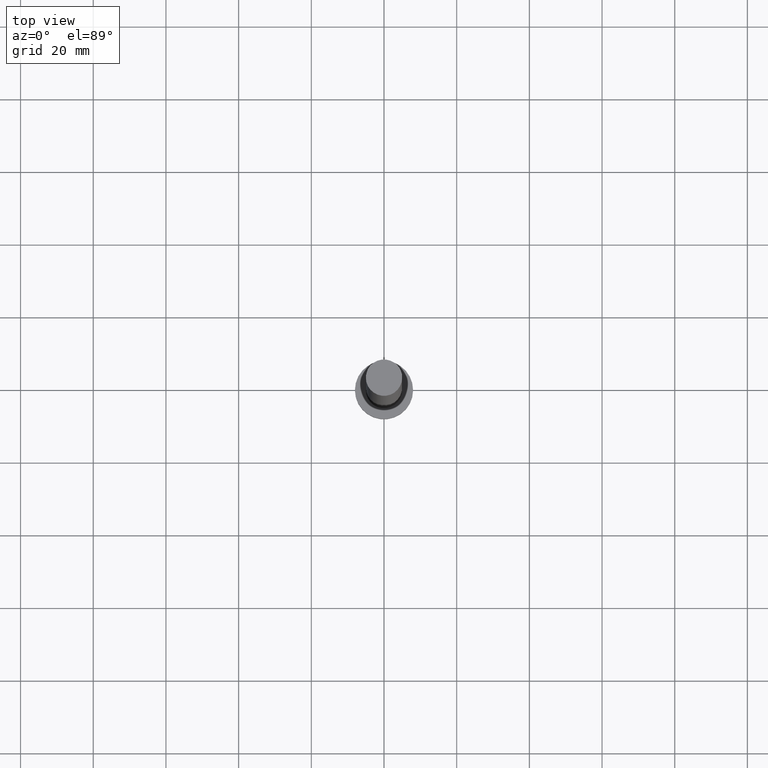
[diagram: clean part render]
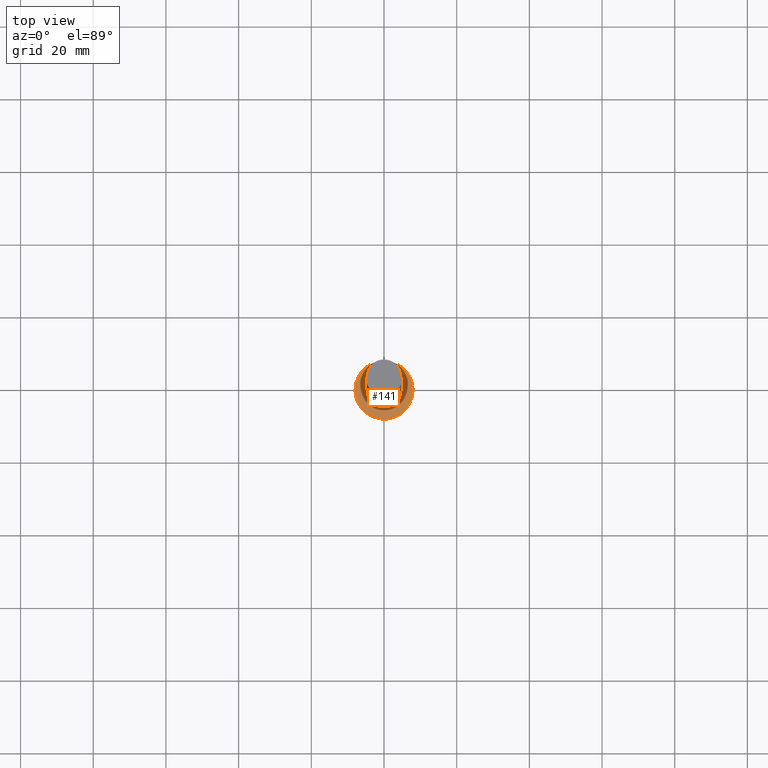
[diagram: same view with one face highlighted and labeled with its STEP entity id]
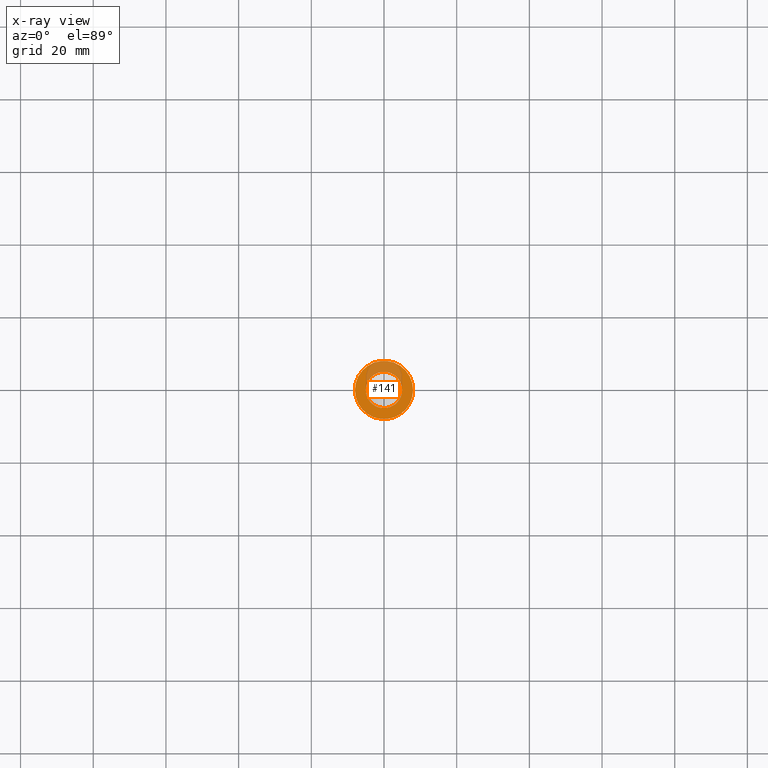
[diagram: x-ray of the same camera — body ghosted, the highlighted face saturated]
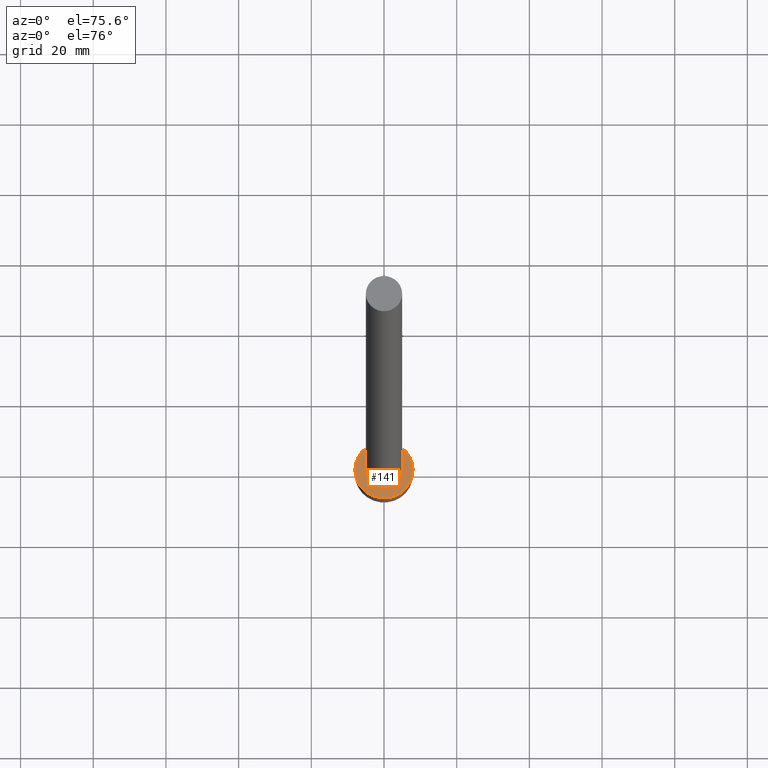
[diagram: same view with one face highlighted and labeled with its STEP entity id]
A machine part, top view. The second image highlights one B-rep face of the part: STEP entity #141.
The next image is the same camera in x-ray: the body ghosted, the highlighted face saturated — about 26% of this face is hidden behind the body in this view.
A second angle (auxiliary view) of the same face is appended — the face is thin or edge-on in the first view.
In plain terms, the highlighted planar face has unit normal (0, 0, 1).
Its self-contained STEP definition (entity closure, byte-faithful):
#1 = AXIS2_PLACEMENT_3D ( 'NONE', #19, #166, #184 ) ;
#4 = CARTESIAN_POINT ( 'NONE',  ( -5.000000000000000888, 0.000000000000000000, 5.000000000000000000 ) ) ;
#6 = CARTESIAN_POINT ( 'NONE',  ( 8.000000000000000000, 9.797174393178825657E-16, 5.000000000000000000 ) ) ;
#8 = AXIS2_PLACEMENT_3D ( 'NONE', #188, #28, #247 ) ;
#9 = EDGE_LOOP ( 'NONE', ( #174, #97 ) ) ;
#19 = CARTESIAN_POINT ( 'NONE',  ( 0.000000000000000000, 0.000000000000000000, 5.000000000000000000 ) ) ;
#28 = DIRECTION ( 'NONE',  ( 0.000000000000000000, 0.000000000000000000, 1.000000000000000000 ) ) ;
#30 = DIRECTION ( 'NONE',  ( 1.000000000000000000, 0.000000000000000000, 0.000000000000000000 ) ) ;
#48 = VERTEX_POINT ( 'NONE', #104 ) ;
#60 = CARTESIAN_POINT ( 'NONE',  ( 0.000000000000000000, 0.000000000000000000, 5.000000000000000000 ) ) ;
#65 = FACE_BOUND ( 'NONE', #221, .T. ) ;
#67 = CARTESIAN_POINT ( 'NONE',  ( 0.000000000000000000, 0.000000000000000000, 5.000000000000000000 ) ) ;
#70 = VERTEX_POINT ( 'NONE', #4 ) ;
#71 = CIRCLE ( 'NONE', #114, 5.000000000000000888 ) ;
#79 = VERTEX_POINT ( 'NONE', #119 ) ;
#85 = DIRECTION ( 'NONE',  ( 0.000000000000000000, 0.000000000000000000, 1.000000000000000000 ) ) ;
#86 = CARTESIAN_POINT ( 'NONE',  ( 0.000000000000000000, 0.000000000000000000, 5.000000000000000000 ) ) ;
#97 = ORIENTED_EDGE ( 'NONE', *, *, #239, .T. ) ;
#104 = CARTESIAN_POINT ( 'NONE',  ( 5.000000000000000888, 6.123233995736767268E-16, 5.000000000000000000 ) ) ;
#110 = DIRECTION ( 'NONE',  ( 1.000000000000000000, 0.000000000000000000, 0.000000000000000000 ) ) ;
#112 = EDGE_CURVE ( 'NONE', #79, #168, #220, .T. ) ;
#114 = AXIS2_PLACEMENT_3D ( 'NONE', #67, #143, #110 ) ;
#119 = CARTESIAN_POINT ( 'NONE',  ( -8.000000000000000000, 0.000000000000000000, 5.000000000000000000 ) ) ;
#132 = AXIS2_PLACEMENT_3D ( 'NONE', #60, #85, #136 ) ;
#136 = DIRECTION ( 'NONE',  ( 1.000000000000000000, 0.000000000000000000, -0.000000000000000000 ) ) ;
#141 = ADVANCED_FACE ( 'NONE', ( #65, #240 ), #255, .T. ) ;
#143 = DIRECTION ( 'NONE',  ( 0.000000000000000000, 0.000000000000000000, 1.000000000000000000 ) ) ;
#149 = ORIENTED_EDGE ( 'NONE', *, *, #183, .F. ) ;
#166 = DIRECTION ( 'NONE',  ( 0.000000000000000000, 0.000000000000000000, 1.000000000000000000 ) ) ;
#167 = AXIS2_PLACEMENT_3D ( 'NONE', #86, #214, #30 ) ;
#168 = VERTEX_POINT ( 'NONE', #6 ) ;
#174 = ORIENTED_EDGE ( 'NONE', *, *, #112, .T. ) ;
#179 = CIRCLE ( 'NONE', #8, 8.000000000000000000 ) ;
#183 = EDGE_CURVE ( 'NONE', #48, #70, #195, .T. ) ;
#184 = DIRECTION ( 'NONE',  ( 1.000000000000000000, 0.000000000000000000, 0.000000000000000000 ) ) ;
#188 = CARTESIAN_POINT ( 'NONE',  ( 0.000000000000000000, 0.000000000000000000, 5.000000000000000000 ) ) ;
#195 = CIRCLE ( 'NONE', #167, 5.000000000000000888 ) ;
#213 = EDGE_CURVE ( 'NONE', #70, #48, #71, .T. ) ;
#214 = DIRECTION ( 'NONE',  ( 0.000000000000000000, 0.000000000000000000, 1.000000000000000000 ) ) ;
#220 = CIRCLE ( 'NONE', #1, 8.000000000000000000 ) ;
#221 = EDGE_LOOP ( 'NONE', ( #234, #149 ) ) ;
#234 = ORIENTED_EDGE ( 'NONE', *, *, #213, .F. ) ;
#239 = EDGE_CURVE ( 'NONE', #168, #79, #179, .T. ) ;
#240 = FACE_OUTER_BOUND ( 'NONE', #9, .T. ) ;
#247 = DIRECTION ( 'NONE',  ( 1.000000000000000000, 0.000000000000000000, 0.000000000000000000 ) ) ;
#255 = PLANE ( 'NONE',  #132 ) ;